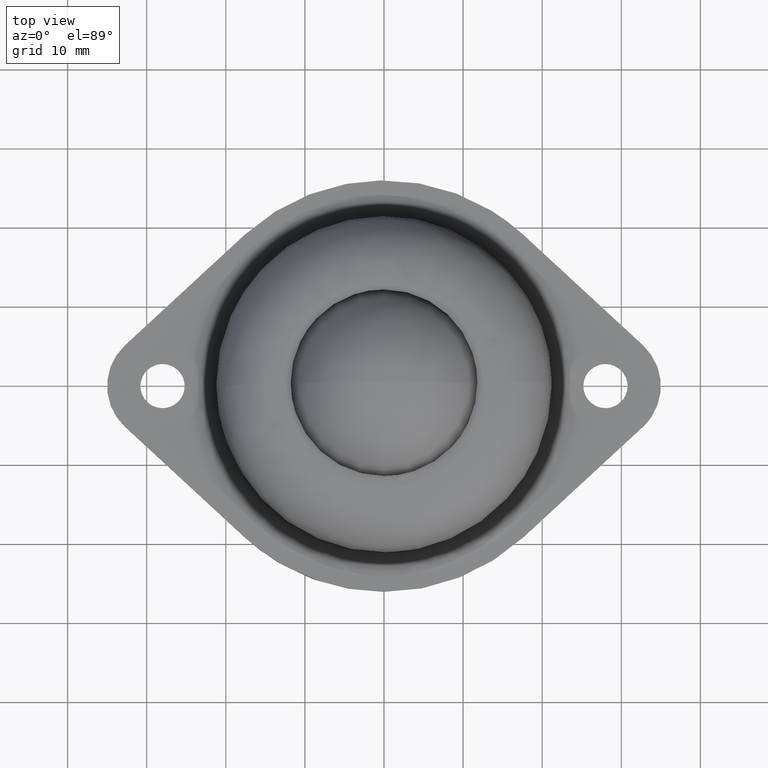
[diagram: clean part render]
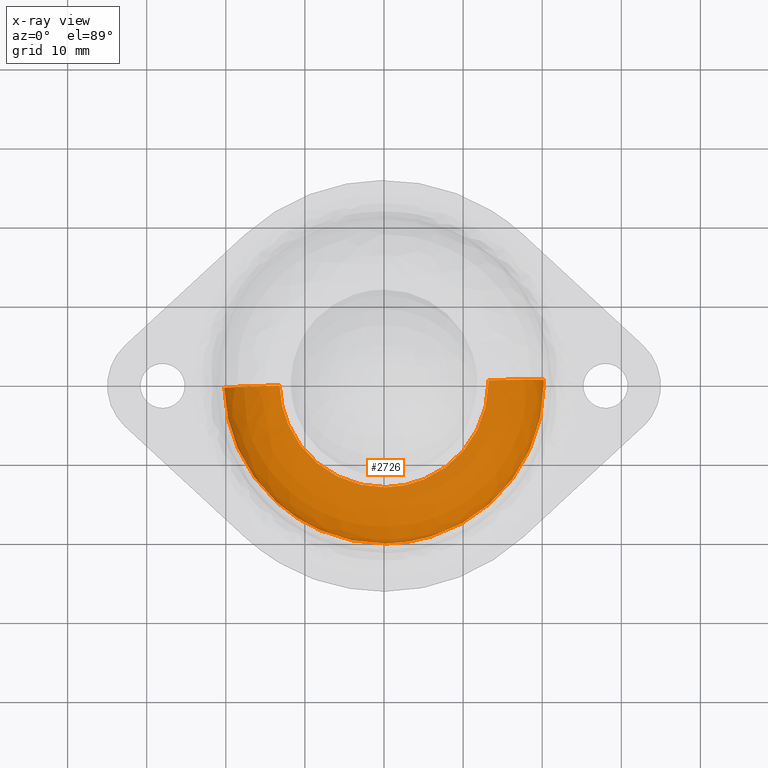
[diagram: x-ray — body ghosted, one internal face saturated and labeled with its STEP entity id]
A machine part, top view, then the same camera in x-ray: the body is ghosted and one INTERNAL B-rep face — a face not visible from any outside direction — is saturated and labeled: STEP entity #2726.
In plain terms, the highlighted face is a freeform B-spline surface patch.
Its self-contained STEP definition (entity closure, byte-faithful):
#2220=CARTESIAN_POINT('',(13.195831298933880,0.331717259922338,23.0));
#2221=VERTEX_POINT('',#2220);
#2238=CARTESIAN_POINT('',(13.199999999999459,0.0,23.0));
#2239=VERTEX_POINT('',#2238);
#2240=CARTESIAN_POINT('',(13.195831298933880,0.331717259922338,23.0));
#2241=CARTESIAN_POINT('',(13.198610293615721,0.221168788868070,22.999999999999979));
#2242=CARTESIAN_POINT('',(13.200000028527411,0.110583173421900,23.000000000000011));
#2243=CARTESIAN_POINT('',(13.199999999999459,0.0,23.0));
#2244=B_SPLINE_CURVE_WITH_KNOTS('',3,(#2240,#2241,#2242,#2243),.UNSPECIFIED.,.F.,.U.,(4,4),(5.385997E-012,0.331752729981677),.UNSPECIFIED.);
#2245=EDGE_CURVE('',#2221,#2239,#2244,.T.);
#2247=CARTESIAN_POINT('',(0.165827271919966,-13.198958342079090,23.0));
#2248=VERTEX_POINT('',#2247);
#2249=CARTESIAN_POINT('',(13.199999999999459,0.0,23.0));
#2250=CARTESIAN_POINT('',(13.200203172859879,-0.990957146294044,23.000000000000082));
#2251=CARTESIAN_POINT('',(13.009056039862941,-2.678136369584860,22.999999999999819));
#2252=CARTESIAN_POINT('',(12.332749898215431,-4.831168152679862,23.000000000000220));
#2253=CARTESIAN_POINT('',(11.415609413428429,-6.742676311492562,22.999999999999542));
#2254=CARTESIAN_POINT('',(10.353974542615720,-8.265933408672048,23.000000000000039));
#2255=CARTESIAN_POINT('',(9.123051092955526,-9.574522410250649,23.000000000000028));
#2256=CARTESIAN_POINT('',(8.024006957912828,-10.518268950266380,22.999999999999869));
#2257=CARTESIAN_POINT('',(6.667736359206010,-11.433975247524900,23.000000000000259));
#2258=CARTESIAN_POINT('',(5.156701956175963,-12.194016580633811,22.999999999999961));
#2259=CARTESIAN_POINT('',(3.558359754704928,-12.745261528459640,22.999999999999879));
#2260=CARTESIAN_POINT('',(1.905527889689930,-13.098213487512830,23.000000000000089));
#2261=CARTESIAN_POINT('',(0.781768202268418,-13.191245874302041,23.000000000000231));
#2262=CARTESIAN_POINT('',(0.165827271919966,-13.198958342079090,23.0));
#2263=B_SPLINE_CURVE_WITH_KNOTS('',3,(#2249,#2250,#2251,#2252,#2253,#2254,#2255,#2256,#2257,#2258,#2259,#2260,#2261,#2262),.UNSPECIFIED.,.F.,.U.,(4,1,1,1,1,1,1,1,1,1,1,4),(0.000000047398110,2.972820408095299,5.061831514076438,6.749111407271041,9.320223081048772,10.605712167220620,12.132324071116320,13.658898794405649,15.506880539291140,17.194168684812912,18.720743408098290,20.568711631789331),.UNSPECIFIED.);
#2264=EDGE_CURVE('',#2239,#2248,#2263,.T.);
#2266=CARTESIAN_POINT('',(-13.195831298933889,-0.331717259922341,23.0));
#2267=VERTEX_POINT('',#2266);
#2268=CARTESIAN_POINT('',(0.165827271919966,-13.198958342079090,23.0));
#2269=CARTESIAN_POINT('',(-0.798253762761286,-13.211236474838239,22.999999999999751));
#2270=CARTESIAN_POINT('',(-2.487655159257265,-13.046581743133370,23.000000000000359));
#2271=CARTESIAN_POINT('',(-4.651492721809990,-12.403781601531371,22.999999999999741));
#2272=CARTESIAN_POINT('',(-6.525661866101882,-11.533319226044309,23.000000000000149));
#2273=CARTESIAN_POINT('',(-8.271792920328393,-10.371833659960901,22.999999999999769));
#2274=CARTESIAN_POINT('',(-9.771303567146372,-8.945238743909316,23.000000000000579));
#2275=CARTESIAN_POINT('',(-10.896043493987060,-7.508591491934005,22.999999999999009));
#2276=CARTESIAN_POINT('',(-11.824221900069929,-5.969011391144257,23.000000000001378));
#2277=CARTESIAN_POINT('',(-12.524488997533100,-4.310317238169318,22.999999999999730));
#2278=CARTESIAN_POINT('',(-13.034851096003919,-2.363725272044057,22.999999999999321));
#2279=CARTESIAN_POINT('',(-13.177052805361560,-1.081382037479528,23.000000000001059));
#2280=CARTESIAN_POINT('',(-13.195831298933889,-0.331717259922341,23.0));
#2281=B_SPLINE_CURVE_WITH_KNOTS('',3,(#2268,#2269,#2270,#2271,#2272,#2273,#2274,#2275,#2276,#2277,#2278,#2279,#2280),.UNSPECIFIED.,.F.,.U.,(4,1,1,1,1,1,1,1,1,1,4),(0.000000047427172,2.892448228277857,5.061809632382484,6.749082231676217,9.079139055521504,11.328807943495489,12.935733165363480,14.542658118896201,16.712006459946711,18.318932122830759,20.568622715609440),.UNSPECIFIED.);
#2282=EDGE_CURVE('',#2248,#2267,#2281,.T.);
#2542=CARTESIAN_POINT('',(-20.193620623522431,-0.507627927964300,16.000000000016641));
#2543=VERTEX_POINT('',#2542);
#2544=CARTESIAN_POINT('',(-13.195831298933889,-0.331717259922341,23.0));
#2545=CARTESIAN_POINT('',(-13.768344443885489,-0.346109114997501,23.000138124609780));
#2546=CARTESIAN_POINT('',(-14.712912629996181,-0.369853702458483,22.883378429992611));
#2547=CARTESIAN_POINT('',(-15.855768503332840,-0.398582852601290,22.497837409974341));
#2548=CARTESIAN_POINT('',(-16.754813254854341,-0.421183070400892,22.052076630154211));
#2549=CARTESIAN_POINT('',(-17.515709639554689,-0.440310509816560,21.536700431054079));
#2550=CARTESIAN_POINT('',(-18.259446690075318,-0.459006597300464,20.862397310689339));
#2551=CARTESIAN_POINT('',(-18.961723598120940,-0.476660458300145,20.027587230214561));
#2552=CARTESIAN_POINT('',(-19.541049713597779,-0.491223578058399,19.033236929028028));
#2553=CARTESIAN_POINT('',(-20.051142434743522,-0.504046306373840,17.660658469451231));
#2554=CARTESIAN_POINT('',(-20.193862352999219,-0.507634004570600,16.658620707586302));
#2555=CARTESIAN_POINT('',(-20.193620623522431,-0.507627927964300,16.000000000016641));
#2556=B_SPLINE_CURVE_WITH_KNOTS('',3,(#2544,#2545,#2546,#2547,#2548,#2549,#2550,#2551,#2552,#2553,#2554,#2555),.UNSPECIFIED.,.F.,.U.,(4,1,1,1,1,1,1,1,1,4),(0.000000043186093,1.718056447758169,2.834814990458044,3.607955947800265,4.724692774415472,5.583713273205967,6.614546328488602,7.989018959808648,9.019870255778601,10.995643279894029),.UNSPECIFIED.);
#2557=EDGE_CURVE('',#2267,#2543,#2556,.T.);
#2600=CARTESIAN_POINT('',(20.193620623522431,0.507627927964295,16.000000000016641));
#2601=VERTEX_POINT('',#2600);
#2614=CARTESIAN_POINT('',(13.195831298933880,0.331717259922338,23.0));
#2615=CARTESIAN_POINT('',(13.596580429092329,0.341791305302072,23.000027166161669));
#2616=CARTESIAN_POINT('',(14.426705065217361,0.362659006878235,22.928487797842418));
#2617=CARTESIAN_POINT('',(15.703321280070030,0.394750629074237,22.583582611616379));
#2618=CARTESIAN_POINT('',(16.760569837673248,0.421327779577270,22.059302216741301));
#2619=CARTESIAN_POINT('',(17.740758624603899,0.445967798921318,21.359720876105740));
#2620=CARTESIAN_POINT('',(18.502459129521782,0.465115452337757,20.616252097396981));
#2621=CARTESIAN_POINT('',(19.175003077713860,0.482021885172438,19.685431335682640));
#2622=CARTESIAN_POINT('',(19.677335898469931,0.494649544847203,18.716964329386592));
#2623=CARTESIAN_POINT('',(20.082921006416949,0.504845157197944,17.488936533716188));
#2624=CARTESIAN_POINT('',(20.193734613096201,0.507630793440112,16.544057485725251));
#2625=CARTESIAN_POINT('',(20.193620623522431,0.507627927964295,16.000000000016641));
#2626=B_SPLINE_CURVE_WITH_KNOTS('',3,(#2614,#2615,#2616,#2617,#2618,#2619,#2620,#2621,#2622,#2623,#2624,#2625),.UNSPECIFIED.,.F.,.U.,(4,1,1,1,1,1,1,1,1,4),(0.000000043189699,1.202633428408991,2.491197805068500,3.951564121068488,4.724692774416651,6.099127092451501,7.129976582387075,8.160828621342850,9.363488356278060,10.995643279894029),.UNSPECIFIED.);
#2627=EDGE_CURVE('',#2221,#2601,#2626,.T.);
#2634=CARTESIAN_POINT('',(12.698985307576940,0.674723910277848,22.982964153308451));
#2635=CARTESIAN_POINT('',(12.703424720430649,0.498122478358869,22.982964153308455));
#2636=CARTESIAN_POINT('',(13.027368176207064,-12.388464112275305,22.982964153308462));
#2637=CARTESIAN_POINT('',(0.319452031965881,-12.707916144241180,22.982964153308451));
#2638=CARTESIAN_POINT('',(-12.388464112275303,-13.027368176207066,22.982964153308462));
#2639=CARTESIAN_POINT('',(-12.712407568050923,-0.140781585604371,22.982964153308448));
#2640=CARTESIAN_POINT('',(-12.716846980903862,0.035819846283856,22.982964153308458));
#2641=CARTESIAN_POINT('',(20.720227480832101,1.100909448203868,23.544174663535134));
#2642=CARTESIAN_POINT('',(20.727471023680788,0.812758721655769,23.544174663535134));
#2643=CARTESIAN_POINT('',(21.256031529267734,-20.213567330557666,23.544174663535134));
#2644=CARTESIAN_POINT('',(0.521232099355037,-20.734799429912702,23.544174663535127));
#2645=CARTESIAN_POINT('',(-20.213567330557655,-21.256031529267734,23.544174663535134));
#2646=CARTESIAN_POINT('',(-20.742127836143329,-0.229705477105666,23.544174663535138));
#2647=CARTESIAN_POINT('',(-20.749371378990741,0.058445249392257,23.544174663535131));
#2648=CARTESIAN_POINT('',(20.162592619624903,1.071281130275469,15.514545981490446));
#2649=CARTESIAN_POINT('',(20.169641220018690,0.790885284341207,15.514545981490453));
#2650=CARTESIAN_POINT('',(20.683976796634902,-19.669568003170685,15.514545981490448));
#2651=CARTESIAN_POINT('',(0.507204396732107,-20.176772399902788,15.514545981490452));
#2652=CARTESIAN_POINT('',(-19.669568003170685,-20.683976796634902,15.514545981490448));
#2653=CARTESIAN_POINT('',(-20.183903579785628,-0.223523509172985,15.514545981490457));
#2654=CARTESIAN_POINT('',(-20.190952180178186,0.056872336712451,15.514545981490453));
#2662=(BOUNDED_SURFACE()B_SPLINE_SURFACE(2,2,((#2634,#2641,#2648),(#2635,#2642,#2649),(#2636,#2643,#2650),(#2637,#2644,#2651),(#2638,#2645,#2652),(#2639,#2646,#2653),(#2640,#2647,#2654)),.UNSPECIFIED.,.F.,.F.,.U.)B_SPLINE_SURFACE_WITH_KNOTS((3,1,2,1,3),(3,3),(0.0,0.668810639512864,34.109342609700697,67.549874579888538,68.218685219282875),(0.0,12.759079231441300),.UNSPECIFIED.)GEOMETRIC_REPRESENTATION_ITEM()RATIONAL_B_SPLINE_SURFACE(((0.921564716012435,0.606435493453446,0.926697837808184),(0.916228828699620,0.602924213779501,0.921332229566400),(0.644098575789570,0.423848950436964,0.647686209279166),(0.910892941386805,0.599412934105556,0.915966621324616),(0.644098575789570,0.423848950436964,0.647686209279166),(0.916228828698674,0.602924213778879,0.921332229565449),(0.921564716010544,0.606435493452201,0.926697837806282)))REPRESENTATION_ITEM('')SURFACE());
#2663=ORIENTED_EDGE('',*,*,#2264,.F.);
#2664=ORIENTED_EDGE('',*,*,#2245,.F.);
#2665=ORIENTED_EDGE('',*,*,#2627,.T.);
#2666=CARTESIAN_POINT('',(20.199999999999999,0.0,16.0));
#2667=VERTEX_POINT('',#2666);
#2668=CARTESIAN_POINT('',(20.193620623522431,0.507627927964295,16.000000000016641));
#2669=CARTESIAN_POINT('',(20.197873326597879,0.338455607008847,16.000000000011070));
#2670=CARTESIAN_POINT('',(20.200000036036329,0.169226104537256,16.000000000005571));
#2671=CARTESIAN_POINT('',(20.199999999999999,0.0,16.0));
#2672=B_SPLINE_CURVE_WITH_KNOTS('',3,(#2668,#2669,#2670,#2671),.UNSPECIFIED.,.F.,.U.,(4,4),(8.241852E-012,0.507682207911184),.UNSPECIFIED.);
#2673=EDGE_CURVE('',#2601,#2667,#2672,.T.);
#2674=ORIENTED_EDGE('',*,*,#2673,.T.);
#2675=CARTESIAN_POINT('',(0.253819215512369,-20.198405278779731,16.000000000008320));
#2676=VERTEX_POINT('',#2675);
#2677=CARTESIAN_POINT('',(20.199999999999999,0.0,16.0));
#2678=CARTESIAN_POINT('',(20.200018078168348,-0.778709567374219,16.0));
#2679=CARTESIAN_POINT('',(20.105097224429290,-2.418090871371380,16.000000000000060));
#2680=CARTESIAN_POINT('',(19.665032855973770,-4.842587114174249,16.000000000000231));
#2681=CARTESIAN_POINT('',(19.000571265870271,-6.957964186090268,16.000000000000561));
#2682=CARTESIAN_POINT('',(18.144456685617762,-8.956188554589529,16.000000000000909));
#2683=CARTESIAN_POINT('',(17.111085282659499,-10.824619083793030,16.000000000001268));
#2684=CARTESIAN_POINT('',(15.815951232618390,-12.623842572107350,16.000000000002000));
#2685=CARTESIAN_POINT('',(14.424682456331690,-14.186693194408949,16.000000000002242));
#2686=CARTESIAN_POINT('',(13.008149797984119,-15.495865808212059,16.000000000003219));
#2687=CARTESIAN_POINT('',(11.275329931473051,-16.809472653967472,16.000000000003670));
#2688=CARTESIAN_POINT('',(9.477870416778929,-17.884660170946049,16.000000000004551));
#2689=CARTESIAN_POINT('',(7.426315617988442,-18.824338896057679,16.000000000005350));
#2690=CARTESIAN_POINT('',(5.598455543651001,-19.442335269960260,16.000000000006111));
#2691=CARTESIAN_POINT('',(3.161547795575562,-20.009461974421839,16.000000000007130));
#2692=CARTESIAN_POINT('',(1.442292159909731,-20.183598416619670,16.000000000007841));
#2693=CARTESIAN_POINT('',(0.253819215512369,-20.198405278779731,16.000000000008320));
#2694=B_SPLINE_CURVE_WITH_KNOTS('',3,(#2677,#2678,#2679,#2680,#2681,#2682,#2683,#2684,#2685,#2686,#2687,#2688,#2689,#2690,#2691,#2692,#2693),.UNSPECIFIED.,.F.,.U.,(4,1,1,1,1,1,1,1,1,1,1,1,1,1,4),(0.000000036341277,2.336130186324692,4.918161177212618,7.377259818189188,8.975671318890903,11.434754049783210,13.770887637431651,15.615224120731000,17.705418828200258,19.549738303598311,22.131774020722599,23.976096436201480,26.312238537027302,27.910641080857371,31.476308496444620),.UNSPECIFIED.);
#2695=EDGE_CURVE('',#2667,#2676,#2694,.T.);
#2696=ORIENTED_EDGE('',*,*,#2695,.T.);
#2697=CARTESIAN_POINT('',(-13.532150872115860,-14.997362860659671,16.000000000013980));
#2698=VERTEX_POINT('',#2697);
#2699=CARTESIAN_POINT('',(0.253819215512369,-20.198405278779731,16.000000000008320));
#2700=CARTESIAN_POINT('',(-0.885121958233949,-20.212779817095122,16.000000000008779));
#2701=CARTESIAN_POINT('',(-3.283376362101072,-20.039730037783361,16.000000000009820));
#2702=CARTESIAN_POINT('',(-6.494069829098880,-19.220170520393321,16.000000000011049));
#2703=CARTESIAN_POINT('',(-9.345748130758340,-17.979468102075199,16.000000000012282));
#2704=CARTESIAN_POINT('',(-11.598250058058751,-16.606405126141642,16.000000000013120));
#2705=CARTESIAN_POINT('',(-12.948942243567400,-15.523612953743539,16.000000000013799));
#2706=CARTESIAN_POINT('',(-13.532150872115860,-14.997362860659671,16.000000000013980));
#2707=B_SPLINE_CURVE_WITH_KNOTS('',3,(#2699,#2700,#2701,#2702,#2703,#2704,#2705,#2706),.UNSPECIFIED.,.F.,.U.,(4,1,1,1,1,4),(9.795134E-009,3.417098956236488,7.187699992565693,9.897806144152799,12.725754934719040,15.082374049315300),.UNSPECIFIED.);
#2708=EDGE_CURVE('',#2676,#2698,#2707,.T.);
#2709=ORIENTED_EDGE('',*,*,#2708,.T.);
#2710=CARTESIAN_POINT('',(-13.532150872115860,-14.997362860659671,16.000000000013980));
#2711=CARTESIAN_POINT('',(-14.419743792991870,-14.196647964785710,16.000000000014339));
#2712=CARTESIAN_POINT('',(-15.847998779138400,-12.656896646048169,16.000000000014939));
#2713=CARTESIAN_POINT('',(-17.305729441064610,-10.491903514088150,16.000000000015500));
#2714=CARTESIAN_POINT('',(-18.327284265239459,-8.567330053408490,16.000000000015959));
#2715=CARTESIAN_POINT('',(-19.162248650083839,-6.552641271161753,16.000000000016289));
#2716=CARTESIAN_POINT('',(-19.924807758241808,-3.789191062517272,16.000000000016549));
#2717=CARTESIAN_POINT('',(-20.163701118298821,-1.702647844446656,16.000000000016669));
#2718=CARTESIAN_POINT('',(-20.193620623522431,-0.507627927964300,16.000000000016641));
#2719=B_SPLINE_CURVE_WITH_KNOTS('',3,(#2710,#2711,#2712,#2713,#2714,#2715,#2716,#2717,#2718),.UNSPECIFIED.,.F.,.U.,(4,1,1,1,1,1,4),(0.000000010846708,3.586164581482798,6.275801189488091,7.812733886191367,10.118103938808209,12.807740546813211,16.393905117449080),.UNSPECIFIED.);
#2720=EDGE_CURVE('',#2698,#2543,#2719,.T.);
#2721=ORIENTED_EDGE('',*,*,#2720,.T.);
#2722=ORIENTED_EDGE('',*,*,#2557,.F.);
#2723=ORIENTED_EDGE('',*,*,#2282,.F.);
#2724=EDGE_LOOP('',(#2663,#2664,#2665,#2674,#2696,#2709,#2721,#2722,#2723));
#2725=FACE_OUTER_BOUND('',#2724,.T.);
#2726=ADVANCED_FACE('',(#2725),#2662,.F.);